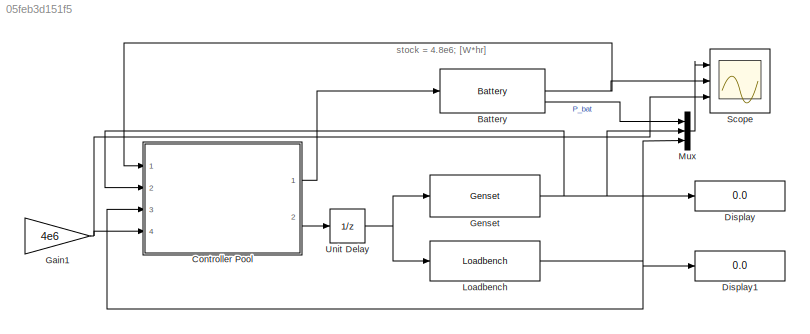
MODEL slx_05feb3d151f5
KIND model
CONFIG AbsTol = auto
CONFIG EnableMultiTasking = off
CONFIG FixedStep = SimulationStep
CONFIG MaxStep = auto
CONFIG MinStep = auto
CONFIG RelTol = 1e-3
CONFIG SampleTimeConstraint = Unconstrained
CONFIG SolverName = FixedStepAuto
CONFIG StartTime = 0.0
CONFIG StopTime = inf
WORKSPACE source: mxarray member
WORKSPACE SimulationStep = 10
BLOCK [Reference] Battery  REF=Assets/Battery
  Ports = [1, 3]
  SourceBlock = Assets/Battery
  SourceProductName = My Library
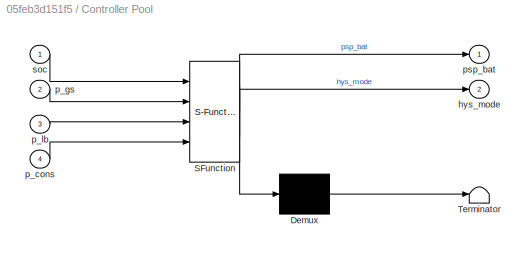
BLOCK [SubSystem] Controller Pool
  ErrorFcn = Stateflow.Translate.translate
  PermitHierarchicalResolution = ExplicitOnly
  Ports = [4, 2]
  RequestExecContextInheritance = off
  SFBlockType = Chart
  TreatAsAtomicUnit = on
BLOCK [Demux] Controller Pool/ Demux 
  Outputs = 1
  Ports = [1, 1]
BLOCK [S-Function] Controller Pool/ SFunction 
  EnableBusSupport = on
  FunctionName = sf_sfun
  Parameters = hys_max,hys_min,max_soc,min_soc
  PortCounts = [4 3]
  Ports = [4, 3]
  SFcnIsStateOwnerBlock = off
  SFunctionDeploymentMode = off
  Tag = Stateflow S-Function 1
BLOCK [Terminator] Controller Pool/ Terminator 
BLOCK [Outport] Controller Pool/hys_mode
  Port = 2
BLOCK [Inport] Controller Pool/p_cons
  Port = 4
BLOCK [Inport] Controller Pool/p_gs
  Port = 2
BLOCK [Inport] Controller Pool/p_lb
  Port = 3
BLOCK [Outport] Controller Pool/psp_bat
BLOCK [Inport] Controller Pool/soc
BLOCK [Display] Display
  Decimation = 1
  Ports = [1]
BLOCK [Display] Display1
  Decimation = 1
  Ports = [1]
BLOCK [Gain] Gain1
  Gain = 4e6
BLOCK [Reference] Genset  REF=Assets/Genset
  Ports = [1, 1]
  SourceBlock = Assets/Genset
  SourceProductName = My Library
BLOCK [Reference] Loadbench  REF=Assets/Loadbench
  Ports = [1, 1]
  SourceBlock = Assets/Loadbench
  SourceProductName = My Library
BLOCK [Mux] Mux
  DisplayOption = bar
  Inputs = 3
  Ports = [3, 1]
BLOCK [Scope] Scope
  Floating = off
  NumInputPorts = 3
  Ports = [3]
  ScopeSpecificationString = Simulink.scopes.TimeScopeBlockCfg('CurrentConfiguration', extmgr.ConfigurationSet(extmgr.Configuration('Core','General UI',true),extmgr.Configuration('Core','Source UI',true),extmgr.Configuration('Sources','WiredSimulink',true),extmgr.Configuration('Visuals','Time Domain',true,'SerializedDisplays',{struct('MinYLimReal','-5000000.00000','MaxYLimReal','5000000.00000','YLabelReal','','MinYLimMag','  ...<+2920ch>
BLOCK [UnitDelay] Unit Delay
  HasFrameUpgradeWarning = on
ANNOTATION (root): stock = 4.8e6; [W*hr]
NET Battery:2 -> Controller Pool:1, Scope:2
LINE Battery:3 -> Mux:1
LINE Controller Pool:1 -> Battery:1
LINE Controller Pool:2 -> Unit Delay:1
NET Gain1:1 -> Controller Pool:4, Scope:3
NET Genset:1 -> Controller Pool:2, Display:1, Mux:2
NET Loadbench:1 -> Controller Pool:3, Display1:1, Mux:3
LINE Mux:1 -> Scope:1
NET Unit Delay:1 -> Genset:1, Loadbench:1
note: NET lines group one-source signal fan-out (src -> all destinations, sorted); 1:1 wires keep LINE
CHART Controller Pool states=19 transitions=27
  STATE_LABEL '?'
  STATE_LABEL 'Battery1\nentry : p_cons = psp_bat;\nduring :\npsp_gs = 0;\npsp_lb = 0;\n'
  STATE_LABEL 'Genset1\nentry : p_cons = psp_gs;\nduring :\npsp_lb = 0;\npsp_bat = 0;\n'
  STATE_LABEL 'Loadbench1\nentry : p_cons = psp_lb\nduring :\npsp_gs = 0;\npsp_bat = 0;\n'
  STATE_LABEL '[SOC < min_soc && p_cons >=0]'
  STATE_LABEL '[min_soc < SOC < max_soc]'
  STATE_LABEL '[SOC > max_soc && p_cons <=0]'
  STATE_LABEL '[min_soc < SOC < max_soc]'
  STATE_LABEL 'Battery1\nentry : p_cons = psp_bat;\nduring :\npsp_gs = 0;\npsp_lb = 0;\n'
  STATE_LABEL 'Genset1\nentry : p_cons = psp_gs;\nduring :\npsp_lb = 0;\npsp_bat = 0;\n'
  STATE_LABEL 'Loadbench1\nentry : p_cons = psp_lb\nduring :\npsp_gs = 0;\npsp_bat = 0;\n'
  STATE_LABEL 'Hysteresis_mode'
  STATE_LABEL 'Mode___1\nen : hys_mode = -1;\ndu : psp_bat = p_cons - p_lb - p_gs;'
  STATE_LABEL 'Mode_0\nen : hys_mode = 0;\ndu : psp_bat = p_cons - p_lb - p_gs;'
  STATE_LABEL 'Mode_1\nen : hys_mode = 1;\ndu : psp_bat = p_cons - p_lb - p_gs;'
  STATE_LABEL '[soc <= min_soc]'
  STATE_LABEL '[soc >= max_soc]'
  STATE_LABEL '[soc >= hys_min]'
  STATE_LABEL '[soc <= hys_max]'
  STATE_LABEL 'Mode___1\nen : hys_mode = -1;\ndu : psp_bat = p_cons - p_lb - p_gs;'
  STATE_LABEL 'Mode_0\nen : hys_mode = 0;\ndu : psp_bat = p_cons - p_lb - p_gs;'
  STATE_LABEL 'Mode_1\nen : hys_mode = 1;\ndu : psp_bat = p_cons - p_lb - p_gs;'
  STATE_LABEL 'Dispatcher1\n'
  STATE_LABEL 'Battery1\nen :\nhys_mode = 0;\np_cons = psp_bat;'
  STATE_LABEL 'LB_off\nen : hys_mode = 0;\ndu : p_cons = psp_bat;'
  STATE_LABEL 'LB_on\nen : hys_mode = 1;\ndu : p_cons = psp_lb;'
  STATE_LABEL 'GS_on\nen : hys_mode = -1;\ndu : p_cons = psp_gs;'
  STATE_LABEL 'GS_off\nen : hys_mode = 0;\ndu : p_cons = psp_bat;'
  STATE_LABEL '[soc >= hys_min]'
  STATE_LABEL '[soc >= hys_max]'
  STATE_LABEL '[soc <= hys_min]'
  STATE_LABEL '[soc <= hys_max]'
  STATE_LABEL 'Battery1\nen :\nhys_mode = 0;\np_cons = psp_bat;'
  STATE_LABEL 'LB_off\nen : hys_mode = 0;\ndu : p_cons = psp_bat;'
  STATE_LABEL 'LB_on\nen : hys_mode = 1;\ndu : p_cons = psp_lb;'
  STATE_LABEL 'GS_on\nen : hys_mode = -1;\ndu : p_cons = psp_gs;'
  STATE_LABEL 'GS_off\nen : hys_mode = 0;\ndu : p_cons = psp_bat;'
  STATE_LABEL 'start_order'
  STATE_LABEL '% start_order'
  STATE_LABEL '[psp_gs > 0]'
CHART  states=0 transitions=0
